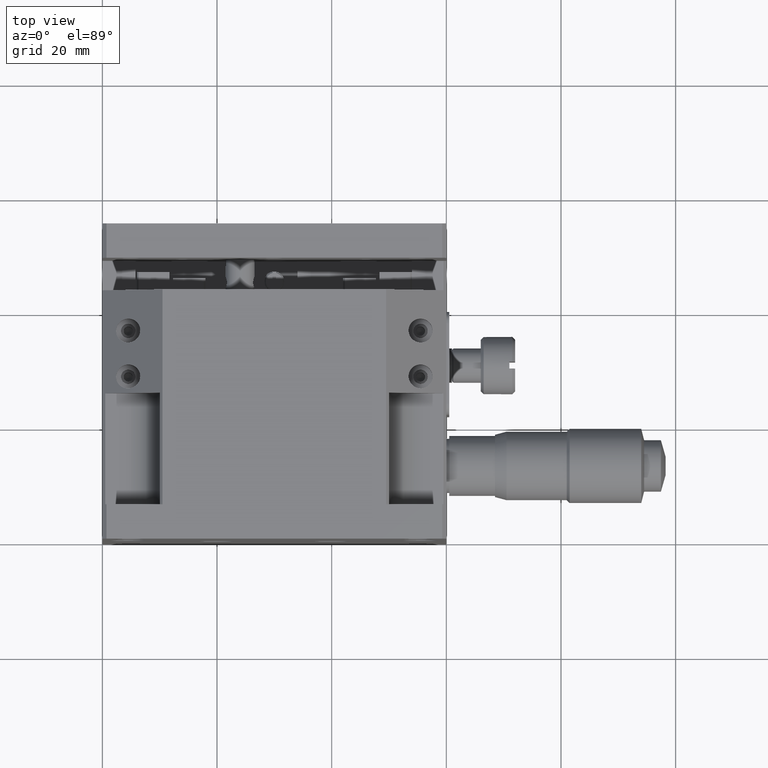
[diagram: clean part render]
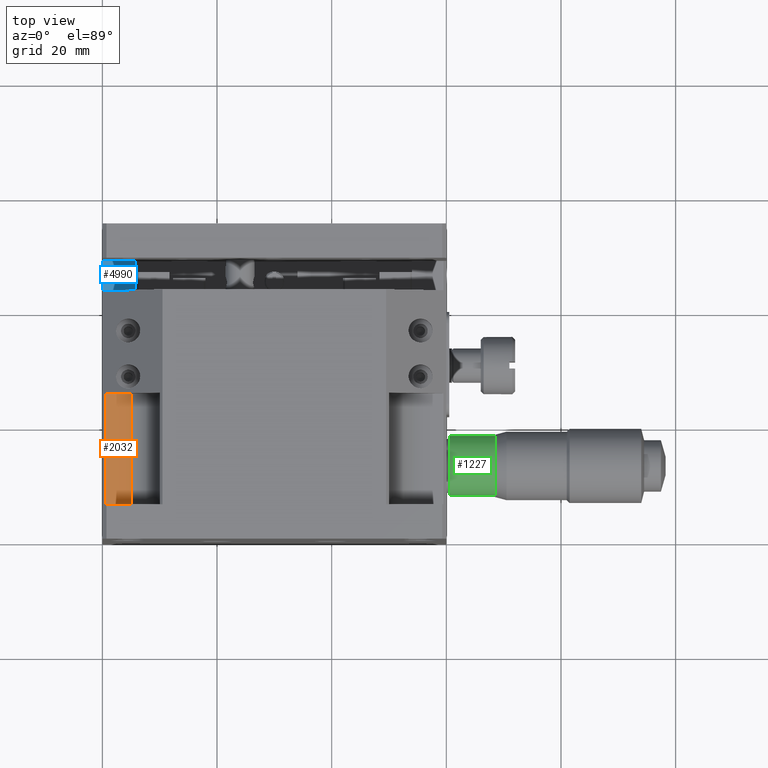
[diagram: same view with three faces highlighted in distinct colors, each labeled with its STEP entity id]
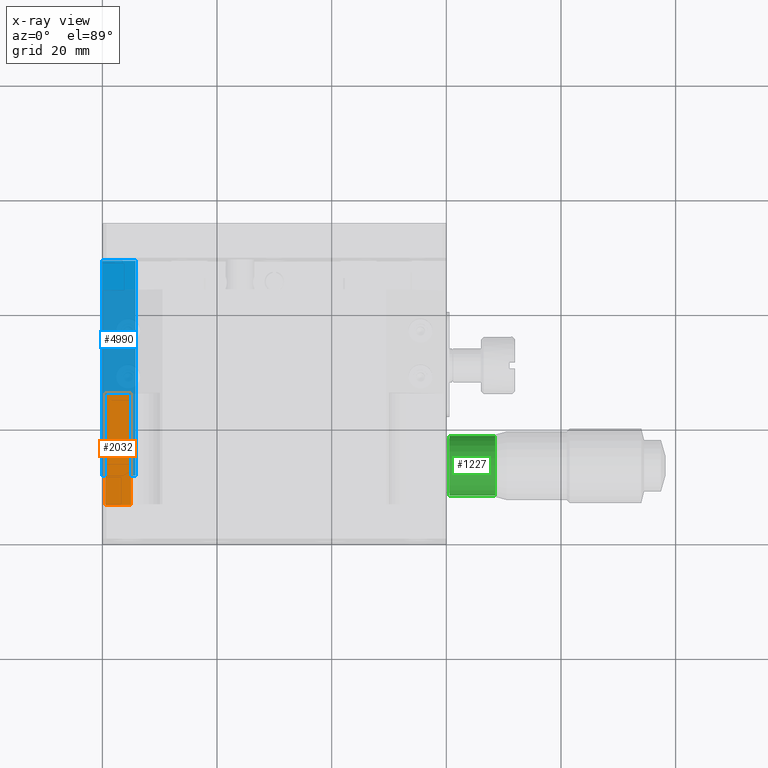
[diagram: x-ray of the same camera — body ghosted, the three highlighted faces saturated]
A machine part, top view with three faces highlighted in distinct colors.
The next image is the same camera in x-ray (body ghosted, the three faces saturated) — at least one of them is partly hidden behind the body in this view.
Their STEP definitions:

[orange] entity #2032 — the highlighted planar face has unit normal (0, 0, 1).
#146 = EDGE_CURVE ( 'NONE', #7712, #9625, #1676, .T. ) ;
#345 = EDGE_CURVE ( 'NONE', #3614, #1571, #5001, .T. ) ;
#429 = CARTESIAN_POINT ( 'NONE',  ( 5.000000000000021316, 25.50000000000000355, -10.00000000000000000 ) ) ;
#700 = DIRECTION ( 'NONE',  ( -1.000000000000000000, -0.000000000000000000, 0.000000000000000000 ) ) ;
#1284 = FACE_OUTER_BOUND ( 'NONE', #11851, .T. ) ;
#1571 = VERTEX_POINT ( 'NONE', #10839 ) ;
#1676 = LINE ( 'NONE', #3531, #4763 ) ;
#2032 = ADVANCED_FACE ( 'NONE', ( #1284 ), #3197, .T. ) ;
#3019 = DIRECTION ( 'NONE',  ( -0.000000000000000000, 1.000000000000000000, -0.000000000000000000 ) ) ;
#3059 = VECTOR ( 'NONE', #700, 1000.000000000000000 ) ;
#3197 = PLANE ( 'NONE',  #5238 ) ;
#3531 = CARTESIAN_POINT ( 'NONE',  ( 0.5000000000000146549, 43.50000000000000711, -10.00000000000000000 ) ) ;
#3614 = VERTEX_POINT ( 'NONE', #7985 ) ;
#3815 = ORIENTED_EDGE ( 'NONE', *, *, #9510, .T. ) ;
#3892 = ORIENTED_EDGE ( 'NONE', *, *, #146, .T. ) ;
#3896 = CARTESIAN_POINT ( 'NONE',  ( 0.5000000000000142109, 5.999999999999994671, -10.00000000000000000 ) ) ;
#4106 = CARTESIAN_POINT ( 'NONE',  ( 0.5000000000000146549, 25.49999999999999645, -10.00000000000000000 ) ) ;
#4370 = VECTOR ( 'NONE', #3019, 1000.000000000000000 ) ;
#4763 = VECTOR ( 'NONE', #9925, 1000.000000000000000 ) ;
#5001 = LINE ( 'NONE', #429, #4370 ) ;
#5238 = AXIS2_PLACEMENT_3D ( 'NONE', #6881, #8666, #6025 ) ;
#5435 = VECTOR ( 'NONE', #5966, 1000.000000000000000 ) ;
#5966 = DIRECTION ( 'NONE',  ( -1.000000000000000000, -0.000000000000000000, 0.000000000000000000 ) ) ;
#6025 = DIRECTION ( 'NONE',  ( 1.000000000000000000, 0.000000000000000000, -0.000000000000000000 ) ) ;
#6085 = CARTESIAN_POINT ( 'NONE',  ( 0.000000000000000000, 6.000000000000000000, -10.00000000000000000 ) ) ;
#6881 = CARTESIAN_POINT ( 'NONE',  ( 5.000000000000009770, 25.50000000000000355, -10.00000000000000000 ) ) ;
#7527 = ORIENTED_EDGE ( 'NONE', *, *, #9961, .F. ) ;
#7712 = VERTEX_POINT ( 'NONE', #4106 ) ;
#7985 = CARTESIAN_POINT ( 'NONE',  ( 5.000000000000021316, 5.999999999999998224, -10.00000000000000000 ) ) ;
#8666 = DIRECTION ( 'NONE',  ( 0.000000000000000000, 0.000000000000000000, 1.000000000000000000 ) ) ;
#9133 = LINE ( 'NONE', #11172, #3059 ) ;
#9167 = ORIENTED_EDGE ( 'NONE', *, *, #345, .T. ) ;
#9510 = EDGE_CURVE ( 'NONE', #1571, #7712, #9133, .T. ) ;
#9625 = VERTEX_POINT ( 'NONE', #3896 ) ;
#9925 = DIRECTION ( 'NONE',  ( -0.000000000000000000, -1.000000000000000000, -0.000000000000000000 ) ) ;
#9961 = EDGE_CURVE ( 'NONE', #3614, #9625, #11683, .T. ) ;
#10839 = CARTESIAN_POINT ( 'NONE',  ( 5.000000000000021316, 25.50000000000000355, -10.00000000000000000 ) ) ;
#11172 = CARTESIAN_POINT ( 'NONE',  ( 5.000000000000009770, 25.50000000000000355, -10.00000000000000000 ) ) ;
#11683 = LINE ( 'NONE', #6085, #5435 ) ;
#11851 = EDGE_LOOP ( 'NONE', ( #3815, #3892, #7527, #9167 ) ) ;

[blue] entity #4990 — the highlighted planar face has unit normal (0, 0, 1).
#237 = LINE ( 'NONE', #4994, #11703 ) ;
#1061 = ORIENTED_EDGE ( 'NONE', *, *, #1892, .T. ) ;
#1514 = VECTOR ( 'NONE', #7170, 1000.000000000000000 ) ;
#1548 = VECTOR ( 'NONE', #9571, 1000.000000000000000 ) ;
#1710 = CARTESIAN_POINT ( 'NONE',  ( 0.000000000000000000, 49.00000000000000000, -30.50000000000000000 ) ) ;
#1780 = FACE_OUTER_BOUND ( 'NONE', #2972, .T. ) ;
#1892 = EDGE_CURVE ( 'NONE', #11899, #9041, #11320, .T. ) ;
#1953 = PLANE ( 'NONE',  #3890 ) ;
#2177 = CARTESIAN_POINT ( 'NONE',  ( 0.000000000000000000, 49.00000000000000000, -30.50000000000000000 ) ) ;
#2259 = ORIENTED_EDGE ( 'NONE', *, *, #5855, .T. ) ;
#2424 = VERTEX_POINT ( 'NONE', #3838 ) ;
#2732 = CARTESIAN_POINT ( 'NONE',  ( 55.00000000000000000, 11.50000000000000000, -30.50000000000000000 ) ) ;
#2759 = CARTESIAN_POINT ( 'NONE',  ( 0.000000000000000000, 11.50000000000000000, -30.50000000000000000 ) ) ;
#2776 = CARTESIAN_POINT ( 'NONE',  ( 3.458039883784278956, 49.00000000000000000, -30.50000000000000000 ) ) ;
#2972 = EDGE_LOOP ( 'NONE', ( #11685, #3883, #1061, #4541, #2259 ) ) ;
#3011 = DIRECTION ( 'NONE',  ( 1.000000000000000000, 0.000000000000000000, -0.000000000000000000 ) ) ;
#3368 = VECTOR ( 'NONE', #9301, 1000.000000000000000 ) ;
#3838 = CARTESIAN_POINT ( 'NONE',  ( 5.800000000000007816, 49.00000000000000711, -30.50000000000000000 ) ) ;
#3883 = ORIENTED_EDGE ( 'NONE', *, *, #7120, .F. ) ;
#3890 = AXIS2_PLACEMENT_3D ( 'NONE', #2759, #8596, #5711 ) ;
#4043 = EDGE_CURVE ( 'NONE', #9323, #2424, #5338, .T. ) ;
#4541 = ORIENTED_EDGE ( 'NONE', *, *, #5653, .F. ) ;
#4990 = ADVANCED_FACE ( 'NONE', ( #1780 ), #1953, .T. ) ;
#4994 = CARTESIAN_POINT ( 'NONE',  ( 55.00000000000000000, 49.00000000000000000, -30.50000000000000000 ) ) ;
#5338 = LINE ( 'NONE', #10995, #1514 ) ;
#5653 = EDGE_CURVE ( 'NONE', #8598, #9041, #7899, .T. ) ;
#5711 = DIRECTION ( 'NONE',  ( 1.000000000000000000, 0.000000000000000000, -0.000000000000000000 ) ) ;
#5778 = CARTESIAN_POINT ( 'NONE',  ( 0.000000000000000000, 49.00000000000000000, -30.50000000000000000 ) ) ;
#5855 = EDGE_CURVE ( 'NONE', #8598, #9323, #10357, .T. ) ;
#5870 = VECTOR ( 'NONE', #6478, 1000.000000000000000 ) ;
#6478 = DIRECTION ( 'NONE',  ( 1.000000000000000000, 0.000000000000000000, -0.000000000000000000 ) ) ;
#7120 = EDGE_CURVE ( 'NONE', #11899, #2424, #237, .T. ) ;
#7170 = DIRECTION ( 'NONE',  ( -0.000000000000000000, 1.000000000000000000, 0.000000000000000000 ) ) ;
#7899 = LINE ( 'NONE', #2177, #1548 ) ;
#8596 = DIRECTION ( 'NONE',  ( 0.000000000000000000, 0.000000000000000000, 1.000000000000000000 ) ) ;
#8598 = VERTEX_POINT ( 'NONE', #9414 ) ;
#9041 = VERTEX_POINT ( 'NONE', #1710 ) ;
#9301 = DIRECTION ( 'NONE',  ( -1.000000000000000000, -0.000000000000000000, 0.000000000000000000 ) ) ;
#9323 = VERTEX_POINT ( 'NONE', #9826 ) ;
#9414 = CARTESIAN_POINT ( 'NONE',  ( 0.000000000000000000, 11.50000000000000000, -30.50000000000000000 ) ) ;
#9571 = DIRECTION ( 'NONE',  ( 0.000000000000000000, 1.000000000000000000, -0.000000000000000000 ) ) ;
#9826 = CARTESIAN_POINT ( 'NONE',  ( 5.800000000000009592, 11.50000000000000000, -30.50000000000000000 ) ) ;
#10357 = LINE ( 'NONE', #2732, #5870 ) ;
#10995 = CARTESIAN_POINT ( 'NONE',  ( 5.800000000000009592, 11.50000000000000000, -30.50000000000000000 ) ) ;
#11320 = LINE ( 'NONE', #5778, #3368 ) ;
#11685 = ORIENTED_EDGE ( 'NONE', *, *, #4043, .T. ) ;
#11703 = VECTOR ( 'NONE', #3011, 1000.000000000000000 ) ;
#11899 = VERTEX_POINT ( 'NONE', #2776 ) ;

[green] entity #1227 — the highlighted cylindrical surface (bore or boss wall) has radius 5.25 mm, axis along (1, 0, 0).
#618 = DIRECTION ( 'NONE',  ( 0.000000000000000000, 0.000000000000000000, -1.000000000000000000 ) ) ;
#771 = ORIENTED_EDGE ( 'NONE', *, *, #6717, .T. ) ;
#952 = VERTEX_POINT ( 'NONE', #8467 ) ;
#1227 = ADVANCED_FACE ( 'NONE', ( #2299, #4268 ), #8754, .T. ) ;
#2299 = FACE_OUTER_BOUND ( 'NONE', #6357, .T. ) ;
#2349 = CARTESIAN_POINT ( 'NONE',  ( 60.50000000000000000, 13.00000000000000178, -18.00000000000000355 ) ) ;
#3223 = DIRECTION ( 'NONE',  ( 0.000000000000000000, 0.000000000000000000, -1.000000000000000000 ) ) ;
#4268 = FACE_OUTER_BOUND ( 'NONE', #10275, .T. ) ;
#4715 = CARTESIAN_POINT ( 'NONE',  ( 60.50000000000000000, 13.00000000000000178, -23.25000000000000355 ) ) ;
#4824 = DIRECTION ( 'NONE',  ( 0.000000000000000000, 0.000000000000000000, -1.000000000000000000 ) ) ;
#5143 = CARTESIAN_POINT ( 'NONE',  ( 98.49971445025400385, 13.00000000000000178, -18.00000000000000355 ) ) ;
#5568 = ORIENTED_EDGE ( 'NONE', *, *, #6786, .T. ) ;
#6357 = EDGE_LOOP ( 'NONE', ( #771 ) ) ;
#6717 = EDGE_CURVE ( 'NONE', #952, #952, #7960, .T. ) ;
#6786 = EDGE_CURVE ( 'NONE', #11408, #11408, #10726, .T. ) ;
#7762 = DIRECTION ( 'NONE',  ( -1.000000000000000000, -0.000000000000000000, -0.000000000000000000 ) ) ;
#7767 = AXIS2_PLACEMENT_3D ( 'NONE', #11463, #7762, #4824 ) ;
#7960 = CIRCLE ( 'NONE', #7767, 5.250000000000000888 ) ;
#8467 = CARTESIAN_POINT ( 'NONE',  ( 68.50000000000000000, 13.00000000000000178, -23.25000000000000355 ) ) ;
#8754 = CYLINDRICAL_SURFACE ( 'NONE', #9035, 5.250000000000000888 ) ;
#8882 = DIRECTION ( 'NONE',  ( 1.000000000000000000, 0.000000000000000000, 0.000000000000000000 ) ) ;
#9035 = AXIS2_PLACEMENT_3D ( 'NONE', #5143, #8882, #3223 ) ;
#10042 = DIRECTION ( 'NONE',  ( 1.000000000000000000, 0.000000000000000000, 0.000000000000000000 ) ) ;
#10275 = EDGE_LOOP ( 'NONE', ( #5568 ) ) ;
#10726 = CIRCLE ( 'NONE', #11116, 5.250000000000000888 ) ;
#11116 = AXIS2_PLACEMENT_3D ( 'NONE', #2349, #10042, #618 ) ;
#11408 = VERTEX_POINT ( 'NONE', #4715 ) ;
#11463 = CARTESIAN_POINT ( 'NONE',  ( 68.50000000000000000, 13.00000000000000178, -18.00000000000000355 ) ) ;